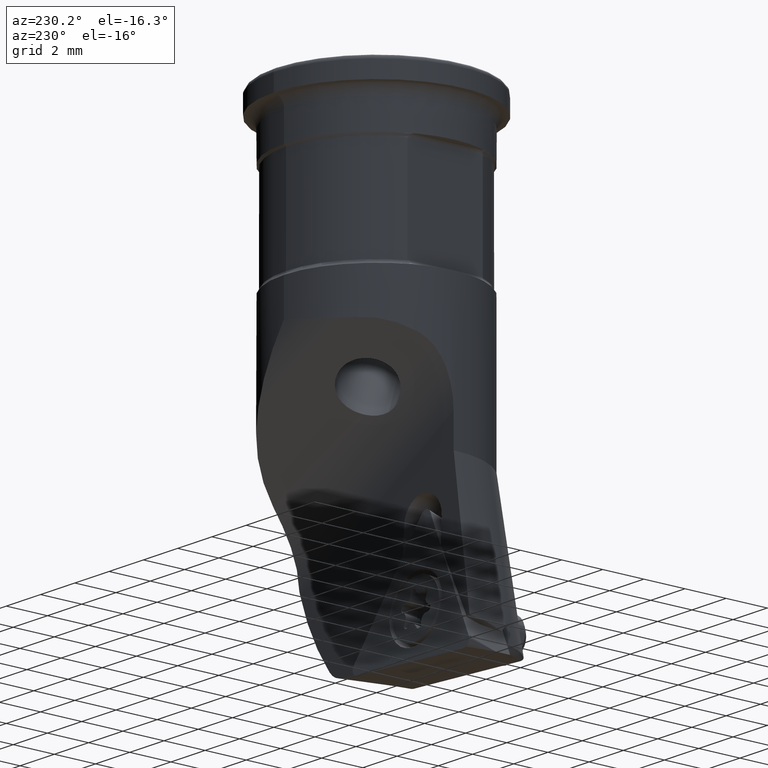
[diagram: clean part render]
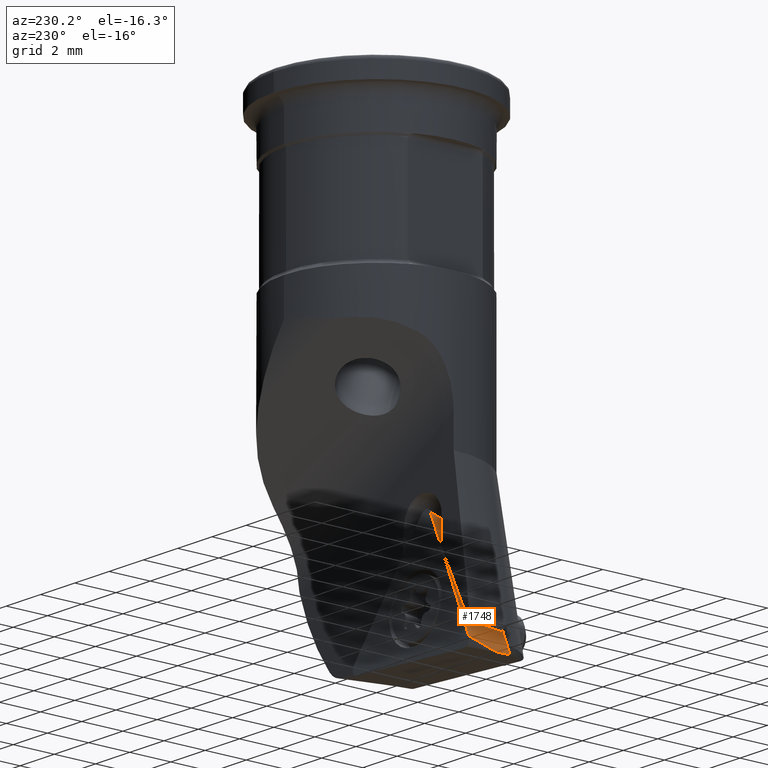
[diagram: same view with one face highlighted and labeled with its STEP entity id]
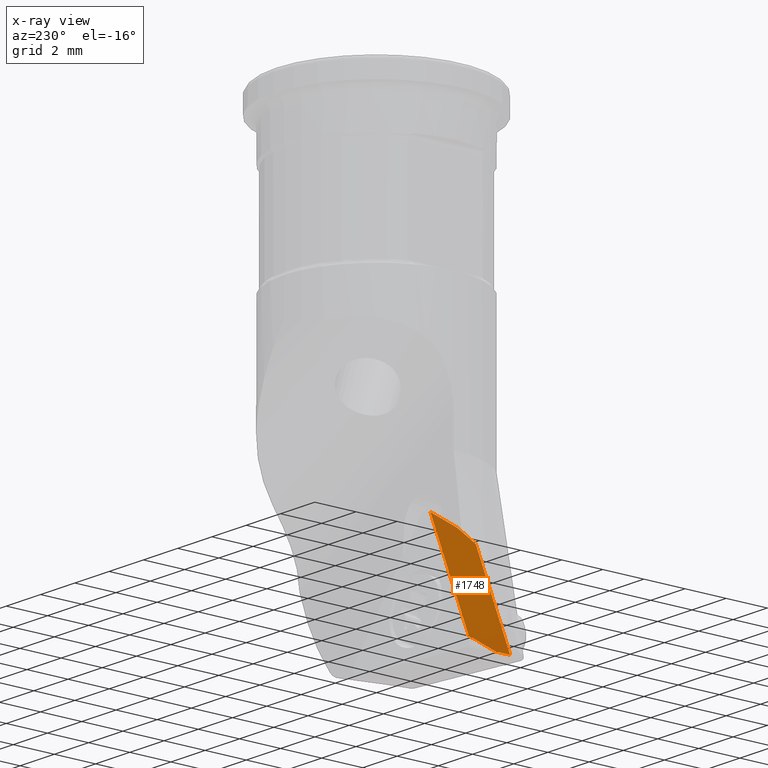
[diagram: x-ray of the same camera — body ghosted, the highlighted face saturated]
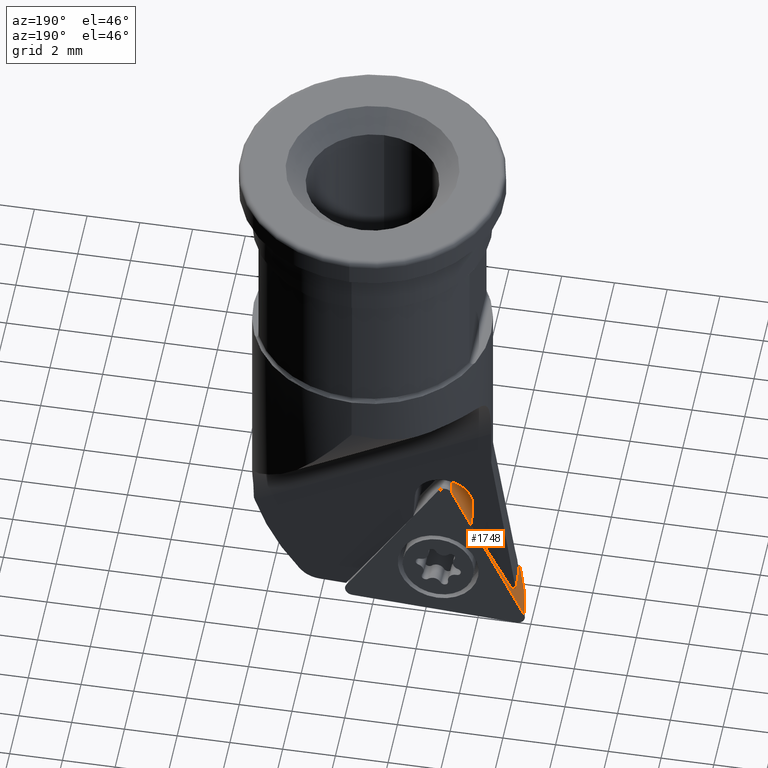
[diagram: same view with one face highlighted and labeled with its STEP entity id]
A machine part, auxiliary view. The second image highlights one B-rep face of the part: STEP entity #1748.
The next image is the same camera in x-ray: the body ghosted, the highlighted face saturated — about 0% of this face is hidden behind the body in this view.
A second angle (auxiliary view) of the same face is appended — the face is thin or edge-on in the first view.
In plain terms, the highlighted planar face has unit normal (-0.8755, -0.2288, 0.4256).
Its self-contained STEP definition (entity closure, byte-faithful):
#714=EDGE_CURVE('NONE',#1046,#1864,#1971,.T.);
#792=VERTEX_POINT('NONE',#2063);
#838=EDGE_CURVE('NONE',#1296,#968,#2114,.T.);
#856=EDGE_CURVE('NONE',#1864,#1296,#2133,.T.);
#968=VERTEX_POINT('NONE',#2253);
#1046=VERTEX_POINT('NONE',#2336);
#1070=VERTEX_POINT('NONE',#2364);
#1296=VERTEX_POINT('NONE',#2613);
#1656=EDGE_CURVE('NONE',#792,#1070,#3012,.T.);
#1748=ADVANCED_FACE('NONE',(#3115),#3116,.T.);
#1844=EDGE_CURVE('NONE',#1070,#968,#3223,.T.);
#1860=EDGE_CURVE('NONE',#792,#1046,#3241,.T.);
#1864=VERTEX_POINT('NONE',#3245);
#1971=LINE('',#3407,#3408);
#2063=CARTESIAN_POINT('',(-2.70235026365156,-2.57141847832068,-17.75827255413));
#2114=LINE('',#4037,#4038);
#2133=LINE('',#4063,#4064);
#2253=CARTESIAN_POINT('',(-2.99013056713863,-0.125120959892979,-17.0352980236993));
#2336=CARTESIAN_POINT('',(-5.23074788534609,-2.13678244202476,-22.7261851816573));
#2364=CARTESIAN_POINT('',(-2.72255677193865,-1.65079044036109,-17.3049573320528));
#2613=CARTESIAN_POINT('',(-5.8098188656611,0.359588460470438,-22.5755520500943));
#3012=LINE('',#6168,#6169);
#3115=FACE_OUTER_BOUND('',#6334,.T.);
#3116=PLANE('',#6335);
#3223=LINE('',#6515,#6516);
#3241=LINE('',#6541,#6542);
#3245=CARTESIAN_POINT('',(-5.54224507046112,-1.16608101999767,-22.8452113584478));
#3407=CARTESIAN_POINT('',(-5.99530750081005,0.24577233349045,-23.0183310253621));
#3408=VECTOR('',#6654,1000.0);
#4037=CARTESIAN_POINT('',(-5.8098188656611,0.359588460470438,-22.5755520500943));
#4038=VECTOR('',#6865,1000.0);
#4063=CARTESIAN_POINT('',(-5.8098188656611,0.359588460470438,-22.5755520500943));
#4064=VECTOR('',#6884,1000.0);
#6168=CARTESIAN_POINT('',(-2.71342566695913,-2.06681240428786,-17.5098056325504));
#6169=VECTOR('',#7890,1000.0);
#6334=EDGE_LOOP('',(#8024,#8025,#8026,#8027,#8028,#8029));
#6335=AXIS2_PLACEMENT_3D('',#8030,#8031,#8032);
#6515=CARTESIAN_POINT('',(-2.99013056713863,-0.125120959892979,-17.0352980236993));
#6516=VECTOR('',#8167,1000.0);
#6541=CARTESIAN_POINT('',(-5.37639322376006,-2.11174574999101,-23.0123558810911));
#6542=VECTOR('',#8185,1000.0);
#6654=DIRECTION('',(-0.303490647445252,0.945751092223329,-0.115966799005757));
#6865=DIRECTION('',(0.452207721717442,-0.0777353095348799,0.888518653755022));
#6884=DIRECTION('',(-0.170184956837325,0.970371536149252,0.171511405736231));
#7890=DIRECTION('',(-0.0196871322621863,0.89696476452407,0.441663478256433));
#8024=ORIENTED_EDGE('',*,*,#1860,.F.);
#8025=ORIENTED_EDGE('',*,*,#1656,.T.);
#8026=ORIENTED_EDGE('',*,*,#1844,.T.);
#8027=ORIENTED_EDGE('',*,*,#838,.F.);
#8028=ORIENTED_EDGE('',*,*,#856,.F.);
#8029=ORIENTED_EDGE('',*,*,#714,.F.);
#8030=CARTESIAN_POINT('',(-5.8098188656611,0.359588460470438,-22.5755520500943));
#8031=DIRECTION('',(-0.875525703155195,-0.228771290774994,0.425580121283578));
#8032=DIRECTION('',(0.170184956837325,-0.970371536149252,-0.171511405736231));
#8167=DIRECTION('',(-0.170184956837325,0.970371536149252,0.171511405736231));
#8185=DIRECTION('',(-0.452207721717442,0.0777353095348799,-0.888518653755022));